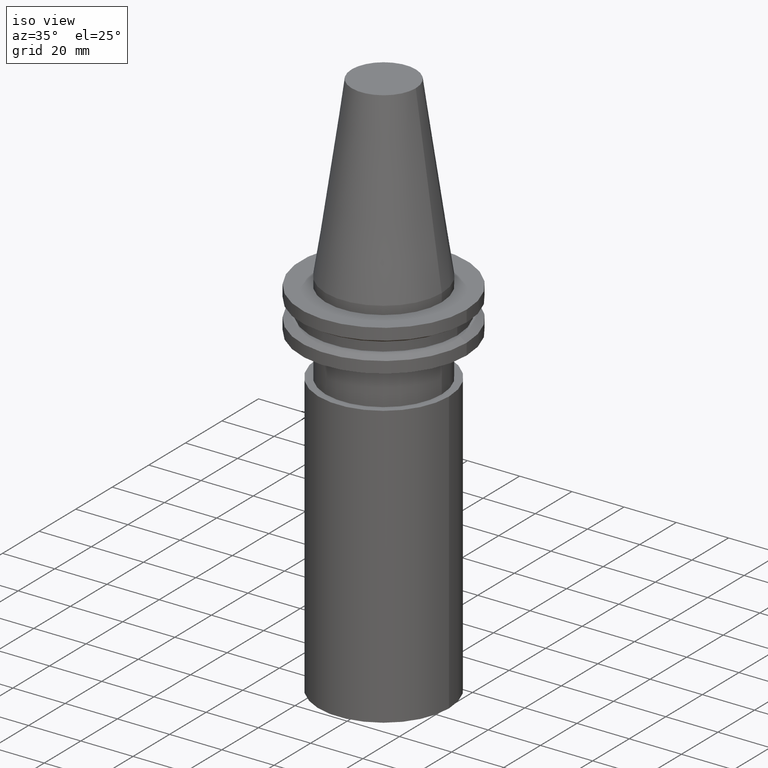
[diagram: clean part render]
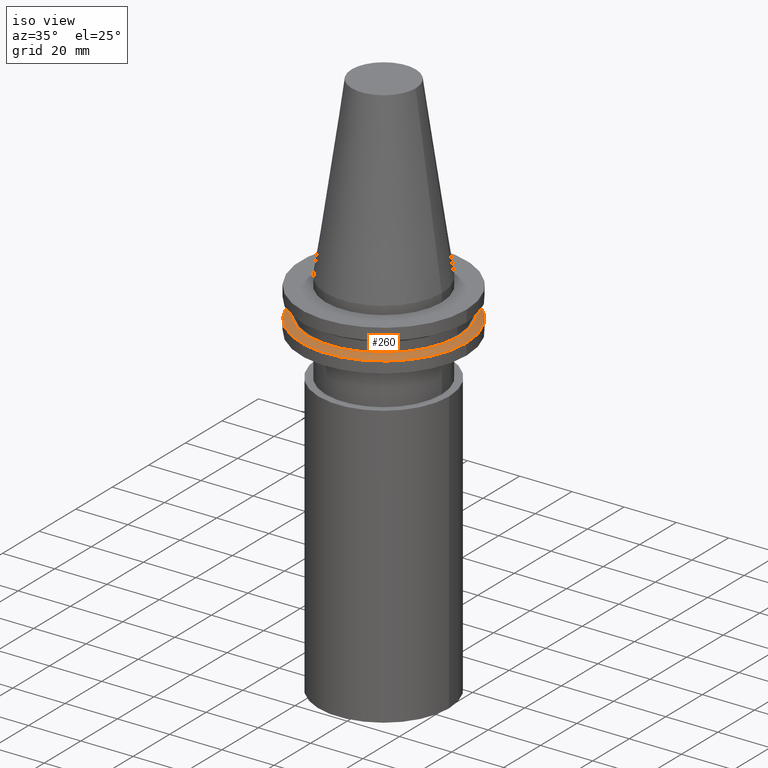
[diagram: same view with one face highlighted and labeled with its STEP entity id]
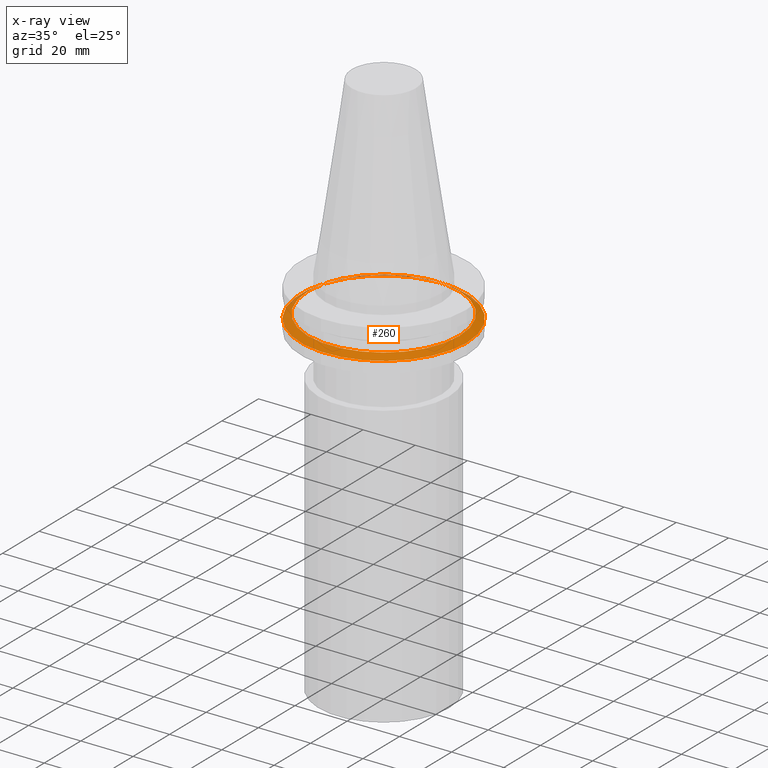
[diagram: x-ray of the same camera — body ghosted, the highlighted face saturated]
A machine part, iso view. The second image highlights one B-rep face of the part: STEP entity #260.
The next image is the same camera in x-ray: the body ghosted, the highlighted face saturated — about 6% of this face is hidden behind the body in this view.
In plain terms, the highlighted conical surface has half-angle 60 deg.
Its self-contained STEP definition (entity closure, byte-faithful):
#10 = DIRECTION ( 'NONE',  ( 0.000000000000000000, 0.000000000000000000, -1.000000000000000000 ) ) ;
#24 = CIRCLE ( 'NONE', #200, 31.75000000000000000 ) ;
#42 = ORIENTED_EDGE ( 'NONE', *, *, #199, .F. ) ;
#58 = AXIS2_PLACEMENT_3D ( 'NONE', #289, #60, #229 ) ;
#60 = DIRECTION ( 'NONE',  ( -0.000000000000000000, -0.000000000000000000, 1.000000000000000000 ) ) ;
#83 = EDGE_LOOP ( 'NONE', ( #135 ) ) ;
#86 = EDGE_CURVE ( 'NONE', #114, #114, #24, .T. ) ;
#88 = DIRECTION ( 'NONE',  ( 1.000000000000000000, 0.000000000000000000, 0.000000000000000000 ) ) ;
#100 = FACE_BOUND ( 'NONE', #331, .T. ) ;
#103 = FACE_OUTER_BOUND ( 'NONE', #83, .T. ) ;
#114 = VERTEX_POINT ( 'NONE', #176 ) ;
#122 = CARTESIAN_POINT ( 'NONE',  ( 0.000000000000000000, 0.000000000000000000, -14.65472339340266572 ) ) ;
#135 = ORIENTED_EDGE ( 'NONE', *, *, #86, .T. ) ;
#167 = AXIS2_PLACEMENT_3D ( 'NONE', #319, #10, #262 ) ;
#168 = VERTEX_POINT ( 'NONE', #362 ) ;
#176 = CARTESIAN_POINT ( 'NONE',  ( 31.75000000000000000, 0.000000000000000000, -14.65472339340266572 ) ) ;
#177 = DIRECTION ( 'NONE',  ( -0.000000000000000000, -0.000000000000000000, 1.000000000000000000 ) ) ;
#199 = EDGE_CURVE ( 'NONE', #168, #168, #241, .T. ) ;
#200 = AXIS2_PLACEMENT_3D ( 'NONE', #122, #177, #88 ) ;
#229 = DIRECTION ( 'NONE',  ( 1.000000000000000000, 0.000000000000000000, 0.000000000000000000 ) ) ;
#241 = CIRCLE ( 'NONE', #58, 28.97919780457008088 ) ;
#260 = ADVANCED_FACE ( 'NONE', ( #100, #103 ), #354, .T. ) ;
#262 = DIRECTION ( 'NONE',  ( -1.000000000000000000, 0.000000000000000000, 0.000000000000000000 ) ) ;
#289 = CARTESIAN_POINT ( 'NONE',  ( 0.000000000000000000, 0.000000000000000000, -13.05499999999999794 ) ) ;
#319 = CARTESIAN_POINT ( 'NONE',  ( 0.000000000000000000, 0.000000000000000000, -14.65472339340266572 ) ) ;
#331 = EDGE_LOOP ( 'NONE', ( #42 ) ) ;
#354 = CONICAL_SURFACE ( 'NONE', #167, 31.75000000000000000, 1.047197551196597853 ) ;
#362 = CARTESIAN_POINT ( 'NONE',  ( 28.97919780457008088, 0.000000000000000000, -13.05499999999999794 ) ) ;